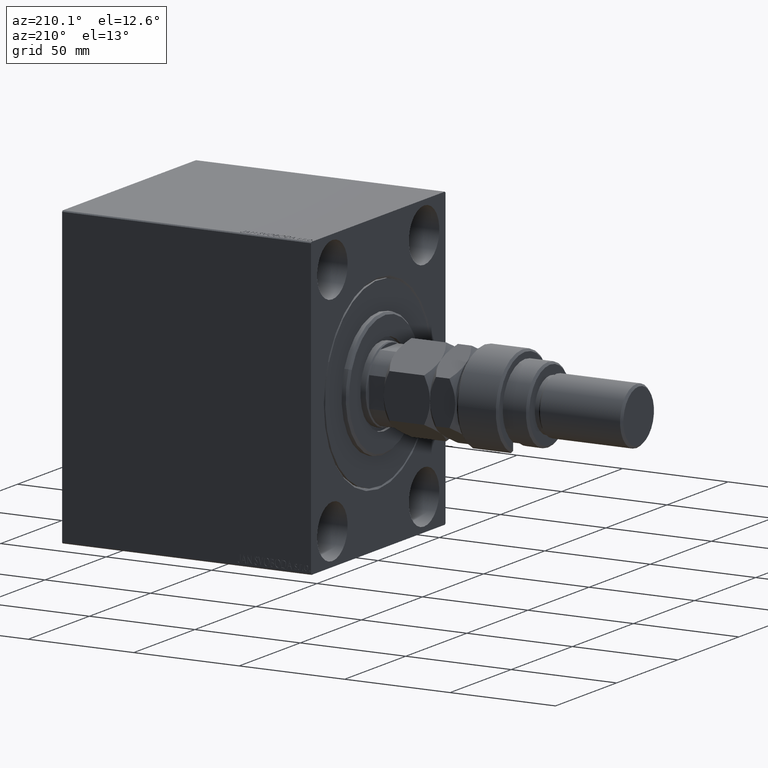
[diagram: clean part render]
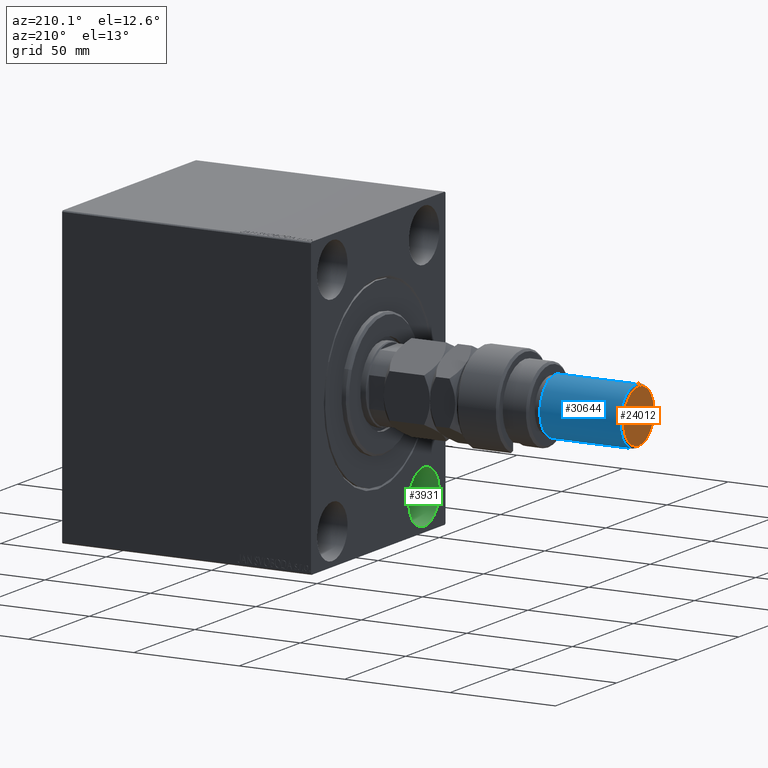
[diagram: same view with three faces highlighted in distinct colors, each labeled with its STEP entity id]
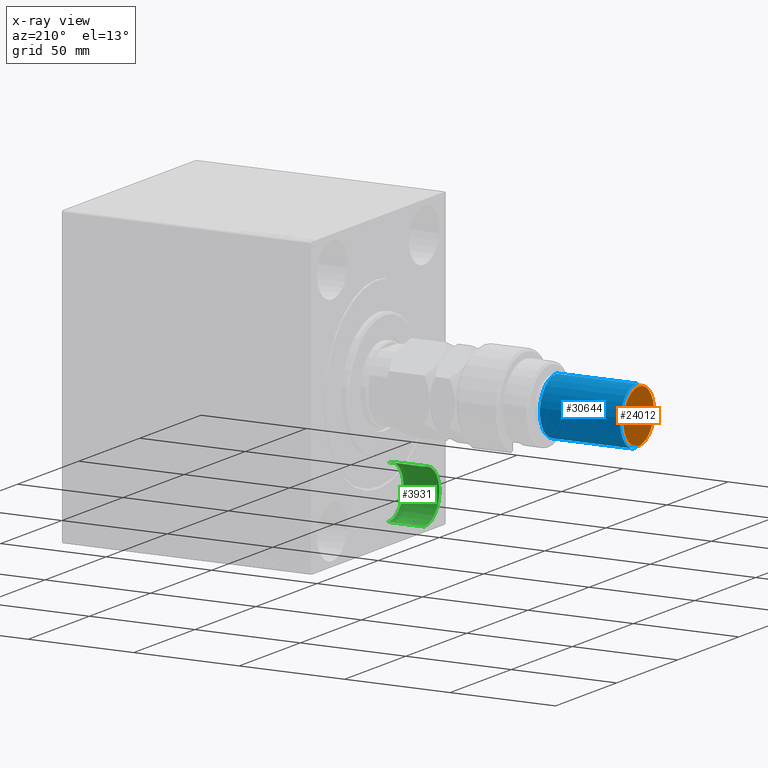
[diagram: x-ray of the same camera — body ghosted, the three highlighted faces saturated]
A machine part, auxiliary view with three faces highlighted in distinct colors.
The next image is the same camera in x-ray (body ghosted, the three faces saturated) — at least one of them is partly hidden behind the body in this view.
Their STEP definitions:

[orange] entity #24012 — the highlighted planar face has unit normal (-1, 0, 0).
#1048 = CARTESIAN_POINT ( 'NONE',  ( 12.50000000000000888, 1.592040838891559884E-15, 74.00000000000001421 ) ) ;
#4407 = CARTESIAN_POINT ( 'NONE',  ( 0.000000000000000000, 0.000000000000000000, 74.00000000000001421 ) ) ;
#5027 = DIRECTION ( 'NONE',  ( 0.000000000000000000, 0.000000000000000000, 1.000000000000000000 ) ) ;
#5531 = DIRECTION ( 'NONE',  ( 1.000000000000000000, 0.000000000000000000, 0.000000000000000000 ) ) ;
#5678 = CIRCLE ( 'NONE', #33575, 12.50000000000000888 ) ;
#6393 = CIRCLE ( 'NONE', #26730, 12.50000000000000888 ) ;
#7062 = ORIENTED_EDGE ( 'NONE', *, *, #12518, .T. ) ;
#7094 = CARTESIAN_POINT ( 'NONE',  ( 0.000000000000000000, 0.000000000000000000, 74.00000000000001421 ) ) ;
#8576 = CARTESIAN_POINT ( 'NONE',  ( 0.000000000000000000, 0.000000000000000000, 74.00000000000001421 ) ) ;
#8970 = ORIENTED_EDGE ( 'NONE', *, *, #41083, .T. ) ;
#12518 = EDGE_CURVE ( 'NONE', #15519, #23340, #5678, .T. ) ;
#15264 = EDGE_LOOP ( 'NONE', ( #8970, #7062 ) ) ;
#15519 = VERTEX_POINT ( 'NONE', #1048 ) ;
#15713 = DIRECTION ( 'NONE',  ( 1.000000000000000000, 0.000000000000000000, 0.000000000000000000 ) ) ;
#19408 = DIRECTION ( 'NONE',  ( 1.000000000000000000, 0.000000000000000000, -0.000000000000000000 ) ) ;
#23340 = VERTEX_POINT ( 'NONE', #33060 ) ;
#24012 = ADVANCED_FACE ( 'NONE', ( #40912 ), #30728, .T. ) ;
#26094 = DIRECTION ( 'NONE',  ( 0.000000000000000000, 0.000000000000000000, 1.000000000000000000 ) ) ;
#26730 = AXIS2_PLACEMENT_3D ( 'NONE', #4407, #26094, #15713 ) ;
#30728 = PLANE ( 'NONE',  #43582 ) ;
#33060 = CARTESIAN_POINT ( 'NONE',  ( -12.50000000000000888, 0.000000000000000000, 74.00000000000001421 ) ) ;
#33575 = AXIS2_PLACEMENT_3D ( 'NONE', #7094, #37866, #5531 ) ;
#37866 = DIRECTION ( 'NONE',  ( 0.000000000000000000, 0.000000000000000000, 1.000000000000000000 ) ) ;
#40912 = FACE_OUTER_BOUND ( 'NONE', #15264, .T. ) ;
#41083 = EDGE_CURVE ( 'NONE', #23340, #15519, #6393, .T. ) ;
#43582 = AXIS2_PLACEMENT_3D ( 'NONE', #8576, #5027, #19408 ) ;

[blue] entity #30644 — the highlighted cylindrical surface (edge-blend (fillet) strip) has radius 13.5 mm, axis along (1, -0, -0).
#497 = LINE ( 'NONE', #14194, #7391 ) ;
#614 = VECTOR ( 'NONE', #28575, 1000.000000000000000 ) ;
#1950 = CARTESIAN_POINT ( 'NONE',  ( 13.50000000000000000, 1.653273178848926867E-15, 73.00000000000001421 ) ) ;
#2024 = CIRCLE ( 'NONE', #11844, 13.50000000000000000 ) ;
#2931 = ORIENTED_EDGE ( 'NONE', *, *, #9678, .F. ) ;
#3342 = LINE ( 'NONE', #17721, #614 ) ;
#3737 = CYLINDRICAL_SURFACE ( 'NONE', #6752, 13.50000000000000000 ) ;
#6752 = AXIS2_PLACEMENT_3D ( 'NONE', #39145, #14802, #11036 ) ;
#7391 = VECTOR ( 'NONE', #29033, 1000.000000000000000 ) ;
#7622 = CARTESIAN_POINT ( 'NONE',  ( -13.50000000000000000, 0.000000000000000000, 73.00000000000001421 ) ) ;
#8979 = VERTEX_POINT ( 'NONE', #7622 ) ;
#9678 = EDGE_CURVE ( 'NONE', #8979, #21896, #497, .T. ) ;
#11036 = DIRECTION ( 'NONE',  ( -1.000000000000000000, 0.000000000000000000, 0.000000000000000000 ) ) ;
#11844 = AXIS2_PLACEMENT_3D ( 'NONE', #22859, #12013, #44118 ) ;
#12013 = DIRECTION ( 'NONE',  ( 0.000000000000000000, 0.000000000000000000, -1.000000000000000000 ) ) ;
#14194 = CARTESIAN_POINT ( 'NONE',  ( -13.50000000000000000, 0.000000000000000000, 74.00000000000001421 ) ) ;
#14802 = DIRECTION ( 'NONE',  ( -0.000000000000000000, -0.000000000000000000, -1.000000000000000000 ) ) ;
#16902 = EDGE_CURVE ( 'NONE', #35443, #21896, #16969, .T. ) ;
#16969 = CIRCLE ( 'NONE', #43383, 13.50000000000000000 ) ;
#17721 = CARTESIAN_POINT ( 'NONE',  ( 13.50000000000000000, 1.653273178848926867E-15, 74.00000000000001421 ) ) ;
#20774 = ORIENTED_EDGE ( 'NONE', *, *, #16902, .T. ) ;
#21774 = EDGE_CURVE ( 'NONE', #8979, #46147, #2024, .T. ) ;
#21896 = VERTEX_POINT ( 'NONE', #45059 ) ;
#22859 = CARTESIAN_POINT ( 'NONE',  ( 0.000000000000000000, 0.000000000000000000, 73.00000000000001421 ) ) ;
#23062 = CARTESIAN_POINT ( 'NONE',  ( 0.000000000000000000, 0.000000000000000000, 34.99999999999999289 ) ) ;
#24185 = EDGE_CURVE ( 'NONE', #46147, #35443, #3342, .T. ) ;
#24599 = EDGE_LOOP ( 'NONE', ( #45014, #35169, #20774, #2931 ) ) ;
#27294 = DIRECTION ( 'NONE',  ( 1.000000000000000000, 0.000000000000000000, 0.000000000000000000 ) ) ;
#28262 = FACE_OUTER_BOUND ( 'NONE', #24599, .T. ) ;
#28575 = DIRECTION ( 'NONE',  ( -0.000000000000000000, -0.000000000000000000, -1.000000000000000000 ) ) ;
#29033 = DIRECTION ( 'NONE',  ( -0.000000000000000000, -0.000000000000000000, -1.000000000000000000 ) ) ;
#30644 = ADVANCED_FACE ( 'NONE', ( #28262 ), #3737, .T. ) ;
#34395 = CARTESIAN_POINT ( 'NONE',  ( 13.50000000000000000, 1.653273178848926867E-15, 34.99999999999999289 ) ) ;
#35169 = ORIENTED_EDGE ( 'NONE', *, *, #24185, .T. ) ;
#35443 = VERTEX_POINT ( 'NONE', #34395 ) ;
#37469 = DIRECTION ( 'NONE',  ( -0.000000000000000000, -0.000000000000000000, 1.000000000000000000 ) ) ;
#39145 = CARTESIAN_POINT ( 'NONE',  ( 0.000000000000000000, 0.000000000000000000, 74.00000000000001421 ) ) ;
#43383 = AXIS2_PLACEMENT_3D ( 'NONE', #23062, #37469, #27294 ) ;
#44118 = DIRECTION ( 'NONE',  ( 1.000000000000000000, 0.000000000000000000, 0.000000000000000000 ) ) ;
#45014 = ORIENTED_EDGE ( 'NONE', *, *, #21774, .T. ) ;
#45059 = CARTESIAN_POINT ( 'NONE',  ( -13.50000000000000000, 0.000000000000000000, 34.99999999999999289 ) ) ;
#46147 = VERTEX_POINT ( 'NONE', #1950 ) ;

[green] entity #3931 — the highlighted cylindrical surface (edge-blend (fillet) strip) has radius 12.5 mm, axis along (-1, -0, -0).
#3931 = ADVANCED_FACE ( 'NONE', ( #24940 ), #28927, .F. ) ;
#4236 = EDGE_CURVE ( 'NONE', #28826, #15176, #39663, .T. ) ;
#5736 = AXIS2_PLACEMENT_3D ( 'NONE', #40048, #35331, #43592 ) ;
#6188 = CARTESIAN_POINT ( 'NONE',  ( 17.00000000000000000, -37.50000000000002132, -54.99999999999999289 ) ) ;
#9803 = VERTEX_POINT ( 'NONE', #33531 ) ;
#11909 = AXIS2_PLACEMENT_3D ( 'NONE', #6188, #38281, #35669 ) ;
#12365 = ORIENTED_EDGE ( 'NONE', *, *, #23145, .F. ) ;
#13488 = VECTOR ( 'NONE', #35357, 1000.000000000000000 ) ;
#13614 = VECTOR ( 'NONE', #25046, 1000.000000000000000 ) ;
#15027 = ORIENTED_EDGE ( 'NONE', *, *, #26490, .T. ) ;
#15176 = VERTEX_POINT ( 'NONE', #32730 ) ;
#17420 = LINE ( 'NONE', #38678, #13488 ) ;
#19320 = CARTESIAN_POINT ( 'NONE',  ( 0.000000000000000000, -37.50000000000002132, -54.99999999999999289 ) ) ;
#22867 = DIRECTION ( 'NONE',  ( -1.000000000000000000, 0.000000000000000000, 0.000000000000000000 ) ) ;
#23145 = EDGE_CURVE ( 'NONE', #9803, #29296, #34507, .T. ) ;
#24538 = CARTESIAN_POINT ( 'NONE',  ( 17.00000000000000000, -37.50000000000002132, -42.49999999999999289 ) ) ;
#24940 = FACE_OUTER_BOUND ( 'NONE', #33888, .T. ) ;
#25046 = DIRECTION ( 'NONE',  ( -1.000000000000000000, -0.000000000000000000, -0.000000000000000000 ) ) ;
#26065 = AXIS2_PLACEMENT_3D ( 'NONE', #19320, #22867, #45300 ) ;
#26490 = EDGE_CURVE ( 'NONE', #9803, #28826, #17420, .T. ) ;
#28826 = VERTEX_POINT ( 'NONE', #37887 ) ;
#28927 = CYLINDRICAL_SURFACE ( 'NONE', #5736, 12.49999999999999645 ) ;
#29296 = VERTEX_POINT ( 'NONE', #24538 ) ;
#32730 = CARTESIAN_POINT ( 'NONE',  ( 0.000000000000000000, -37.50000000000002132, -42.49999999999999289 ) ) ;
#33236 = ORIENTED_EDGE ( 'NONE', *, *, #4236, .T. ) ;
#33531 = CARTESIAN_POINT ( 'NONE',  ( 17.00000000000000000, -37.50000000000002132, -67.49999999999998579 ) ) ;
#33888 = EDGE_LOOP ( 'NONE', ( #12365, #15027, #33236, #44577 ) ) ;
#34507 = CIRCLE ( 'NONE', #11909, 12.49999999999999645 ) ;
#34641 = EDGE_CURVE ( 'NONE', #29296, #15176, #43011, .T. ) ;
#35331 = DIRECTION ( 'NONE',  ( -1.000000000000000000, -0.000000000000000000, -0.000000000000000000 ) ) ;
#35357 = DIRECTION ( 'NONE',  ( -1.000000000000000000, -0.000000000000000000, -0.000000000000000000 ) ) ;
#35669 = DIRECTION ( 'NONE',  ( 0.000000000000000000, 0.000000000000000000, 1.000000000000000000 ) ) ;
#37887 = CARTESIAN_POINT ( 'NONE',  ( 0.000000000000000000, -37.50000000000002132, -67.49999999999998579 ) ) ;
#38281 = DIRECTION ( 'NONE',  ( -1.000000000000000000, 0.000000000000000000, 0.000000000000000000 ) ) ;
#38678 = CARTESIAN_POINT ( 'NONE',  ( 17.00000000000000000, -37.50000000000002132, -67.49999999999998579 ) ) ;
#39663 = CIRCLE ( 'NONE', #26065, 12.49999999999999645 ) ;
#40048 = CARTESIAN_POINT ( 'NONE',  ( 17.00000000000000000, -37.50000000000002132, -54.99999999999999289 ) ) ;
#43011 = LINE ( 'NONE', #43699, #13614 ) ;
#43592 = DIRECTION ( 'NONE',  ( 0.000000000000000000, 0.000000000000000000, 1.000000000000000000 ) ) ;
#43699 = CARTESIAN_POINT ( 'NONE',  ( 17.00000000000000000, -37.50000000000002132, -42.49999999999999289 ) ) ;
#44577 = ORIENTED_EDGE ( 'NONE', *, *, #34641, .F. ) ;
#45300 = DIRECTION ( 'NONE',  ( 0.000000000000000000, 0.000000000000000000, 1.000000000000000000 ) ) ;